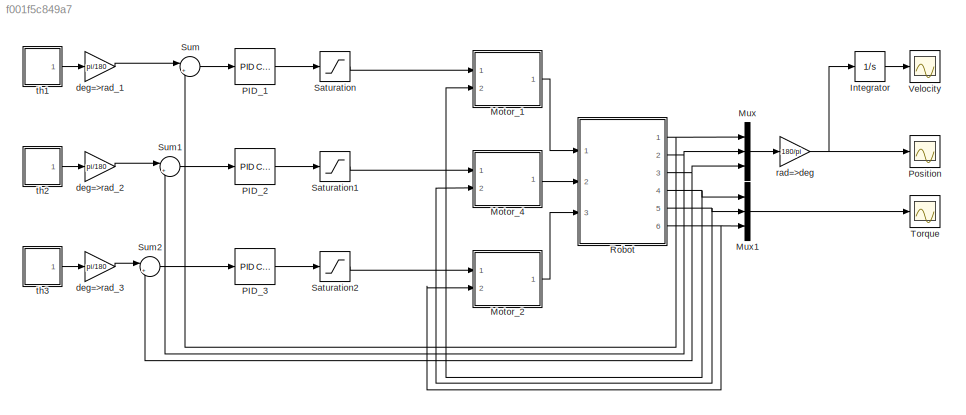
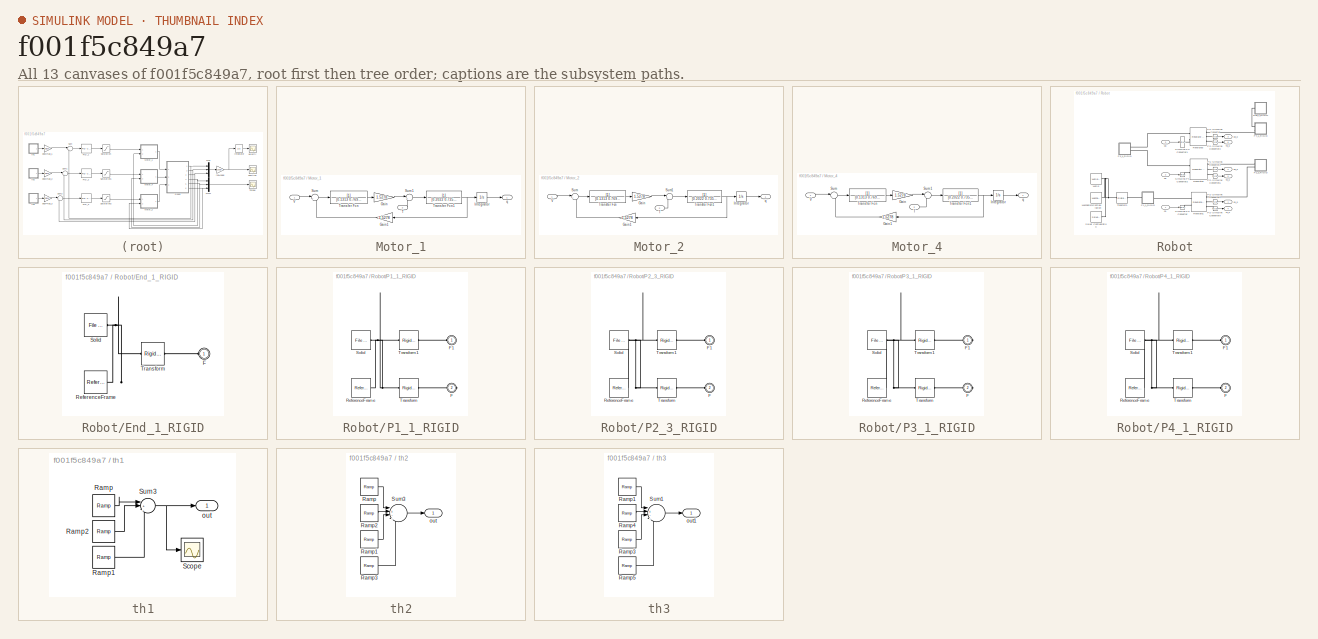
[diagram: thumbnail index - all 13 canvases of the model, root first then tree order]
MODEL slx_f001f5c849a7
KIND model
CONFIG AbsTol = auto
CONFIG EnableMultiTasking = off
CONFIG FixedStep = auto
CONFIG MaxStep = auto
CONFIG MinStep = auto
CONFIG RelTol = 1e-3
CONFIG SampleTimeConstraint = Unconstrained
CONFIG Solver = VariableStepAuto
CONFIG SolverName = VariableStepAuto
CONFIG StartTime = 0.0
CONFIG StopTime = 10
WORKSPACE source: external: MATLAB File  (data not in archive)
BLOCK [Integrator] Integrator
  Ports = [1, 1]
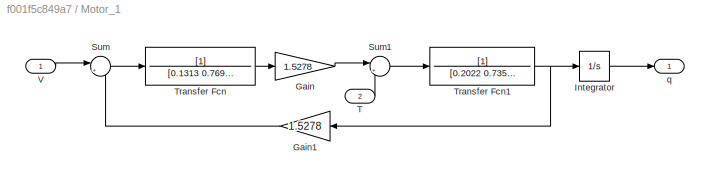
BLOCK [SubSystem] Motor_1
  Ports = [2, 1]
  RequestExecContextInheritance = off
BLOCK [Gain] Motor_1/Gain
  Gain = 1.5278
BLOCK [Gain] Motor_1/Gain1
  Gain = 1.5278
BLOCK [Integrator] Motor_1/Integrator
  Ports = [1, 1]
BLOCK [Sum] Motor_1/Sum
  Inputs = |+-
  Ports = [2, 1]
BLOCK [Sum] Motor_1/Sum1
  Inputs = |+-
  Ports = [2, 1]
BLOCK [Inport] Motor_1/T
  Port = 2
BLOCK [TransferFcn] Motor_1/Transfer Fcn
  Denominator = [0.1313 0.7692]
BLOCK [TransferFcn] Motor_1/Transfer Fcn1
  Denominator = [0.2022 0.7357]
BLOCK [Inport] Motor_1/V
BLOCK [Outport] Motor_1/q
BLOCK [SubSystem] Motor_2
  Ports = [2, 1]
  RequestExecContextInheritance = off
BLOCK [Gain] Motor_2/Gain
  Gain = 1.5278
BLOCK [Gain] Motor_2/Gain1
  Gain = 1.5278
BLOCK [Integrator] Motor_2/Integrator
  Ports = [1, 1]
BLOCK [Sum] Motor_2/Sum
  Inputs = |+-
  Ports = [2, 1]
BLOCK [Sum] Motor_2/Sum1
  Inputs = |+-
  Ports = [2, 1]
BLOCK [Inport] Motor_2/T
  Port = 2
BLOCK [TransferFcn] Motor_2/Transfer Fcn
  Denominator = [0.1313 0.7692]
BLOCK [TransferFcn] Motor_2/Transfer Fcn1
  Denominator = [0.2022 0.7357]
BLOCK [Inport] Motor_2/V
BLOCK [Outport] Motor_2/q
BLOCK [SubSystem] Motor_4
  Ports = [2, 1]
  RequestExecContextInheritance = off
BLOCK [Gain] Motor_4/Gain
  Gain = 1.5278
BLOCK [Gain] Motor_4/Gain1
  Gain = 1.5278
BLOCK [Integrator] Motor_4/Integrator
  Ports = [1, 1]
BLOCK [Sum] Motor_4/Sum
  Inputs = |+-
  Ports = [2, 1]
BLOCK [Sum] Motor_4/Sum1
  Inputs = |+-
  Ports = [2, 1]
BLOCK [Inport] Motor_4/T
  Port = 2
BLOCK [TransferFcn] Motor_4/Transfer Fcn
  Denominator = [0.1313 0.7692]
BLOCK [TransferFcn] Motor_4/Transfer Fcn1
  Denominator = [0.2022 0.7357]
BLOCK [Inport] Motor_4/V
BLOCK [Outport] Motor_4/q
BLOCK [Mux] Mux
  DisplayOption = bar
  Inputs = 3
  Ports = [3, 1]
BLOCK [Mux] Mux1
  DisplayOption = bar
  Inputs = 3
  Ports = [3, 1]
BLOCK [Reference] PID_1  REF=simulink/Continuous/PID Controller
  Ports = [1, 1]
  SourceBlock = simulink/Continuous/PID Controller
  SourceProductBaseCode = SL
  SourceType = PID 1dof
BLOCK [Reference] PID_2  REF=simulink/Continuous/PID Controller
  Ports = [1, 1]
  SourceBlock = simulink/Continuous/PID Controller
  SourceProductBaseCode = SL
  SourceType = PID 1dof
BLOCK [Reference] PID_3  REF=simulink/Continuous/PID Controller
  Ports = [1, 1]
  SourceBlock = simulink/Continuous/PID Controller
  SourceProductBaseCode = SL
  SourceType = PID 1dof
BLOCK [Scope] Position
  Floating = off
  NumInputPorts = 1
  Ports = [1]
  ScopeSpecificationString = Simulink.scopes.TimeScopeBlockCfg('CurrentConfiguration', extmgr.ConfigurationSet(extmgr.Configuration('Core','General UI',true),extmgr.Configuration('Core','Source UI',true),extmgr.Configuration('Sources','WiredSimulink',true),extmgr.Configuration('Visuals','Time Domain',true,'SerializedDisplays',{struct('MinYLimReal','-11.67409','MaxYLimReal','68.47838','YLabelReal','','MinYLimMag','0.00000','Ma...<+1749ch>
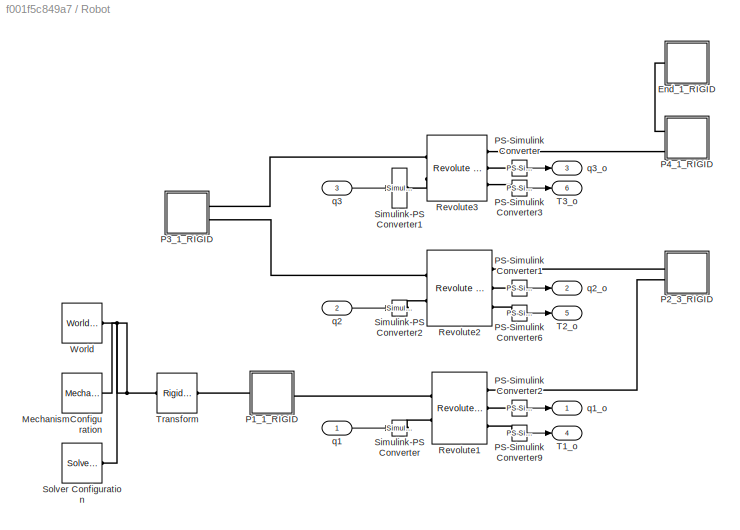
BLOCK [SubSystem] Robot
  Ports = [3, 6]
  RequestExecContextInheritance = off
BLOCK [SubSystem] Robot/End_1_RIGID
  Ports = [0, 0, 0, 0, 0, 1]
  RequestExecContextInheritance = off
BLOCK [PMIOPort] Robot/End_1_RIGID/F
  Side = Left
BLOCK [Reference] Robot/End_1_RIGID/ReferenceFrame  REF=sm_lib/Frames and
Transforms/Reference
Frame
  Ports = [0, 0, 0, 0, 0, 0, 1]
  SourceBlock = sm_lib/Frames and\nTransforms/Reference\nFrame
  SourceProductBaseCode = MS
  SourceType = Reference\nFrame
BLOCK [Reference] Robot/End_1_RIGID/Solid  REF=sm_lib/Body Elements/File Solid
  Ports = [0, 0, 0, 0, 0, 0, 1]
  SourceBlock = sm_lib/Body Elements/File Solid
  SourceProductBaseCode = MS
  SourceType = File Solid
BLOCK [Reference] Robot/End_1_RIGID/Transform  REF=sm_lib/Frames and
Transforms/Rigid
Transform
  Ports = [0, 0, 0, 0, 0, 1, 1]
  SourceBlock = sm_lib/Frames and\nTransforms/Rigid\nTransform
  SourceProductBaseCode = MS
  SourceType = Rigid\nTransform
BLOCK [Reference] Robot/MechanismConfiguration  REF=sm_lib/Utilities/Mechanism
Configuration
  Ports = [0, 0, 0, 0, 0, 0, 1]
  SourceBlock = sm_lib/Utilities/Mechanism\nConfiguration
  SourceProductBaseCode = MS
  SourceType = Mechanism\nConfiguration
BLOCK [SubSystem] Robot/P1_1_RIGID
  Ports = [0, 0, 0, 0, 0, 1, 1]
  RequestExecContextInheritance = off
BLOCK [PMIOPort] Robot/P1_1_RIGID/F
  Port = 2
  Side = Right
BLOCK [PMIOPort] Robot/P1_1_RIGID/F1
  Side = Left
BLOCK [Reference] Robot/P1_1_RIGID/ReferenceFrame  REF=sm_lib/Frames and
Transforms/Reference
Frame
  Ports = [0, 0, 0, 0, 0, 0, 1]
  SourceBlock = sm_lib/Frames and\nTransforms/Reference\nFrame
  SourceProductBaseCode = MS
  SourceType = Reference\nFrame
BLOCK [Reference] Robot/P1_1_RIGID/Solid  REF=sm_lib/Body Elements/File Solid
  Ports = [0, 0, 0, 0, 0, 0, 1]
  SourceBlock = sm_lib/Body Elements/File Solid
  SourceProductBaseCode = MS
  SourceType = File Solid
BLOCK [Reference] Robot/P1_1_RIGID/Transform  REF=sm_lib/Frames and
Transforms/Rigid
Transform
  Ports = [0, 0, 0, 0, 0, 1, 1]
  SourceBlock = sm_lib/Frames and\nTransforms/Rigid\nTransform
  SourceProductBaseCode = MS
  SourceType = Rigid\nTransform
BLOCK [Reference] Robot/P1_1_RIGID/Transform1  REF=sm_lib/Frames and
Transforms/Rigid
Transform
  Ports = [0, 0, 0, 0, 0, 1, 1]
  SourceBlock = sm_lib/Frames and\nTransforms/Rigid\nTransform
  SourceProductBaseCode = MS
  SourceType = Rigid\nTransform
BLOCK [SubSystem] Robot/P2_3_RIGID
  Ports = [0, 0, 0, 0, 0, 2]
  RequestExecContextInheritance = off
BLOCK [PMIOPort] Robot/P2_3_RIGID/F
  Port = 2
  Side = Left
BLOCK [PMIOPort] Robot/P2_3_RIGID/F1
  Side = Left
BLOCK [Reference] Robot/P2_3_RIGID/ReferenceFrame  REF=sm_lib/Frames and
Transforms/Reference
Frame
  Ports = [0, 0, 0, 0, 0, 0, 1]
  SourceBlock = sm_lib/Frames and\nTransforms/Reference\nFrame
  SourceProductBaseCode = MS
  SourceType = Reference\nFrame
BLOCK [Reference] Robot/P2_3_RIGID/Solid  REF=sm_lib/Body Elements/File Solid
  Ports = [0, 0, 0, 0, 0, 0, 1]
  SourceBlock = sm_lib/Body Elements/File Solid
  SourceProductBaseCode = MS
  SourceType = File Solid
BLOCK [Reference] Robot/P2_3_RIGID/Transform  REF=sm_lib/Frames and
Transforms/Rigid
Transform
  Ports = [0, 0, 0, 0, 0, 1, 1]
  SourceBlock = sm_lib/Frames and\nTransforms/Rigid\nTransform
  SourceProductBaseCode = MS
  SourceType = Rigid\nTransform
BLOCK [Reference] Robot/P2_3_RIGID/Transform1  REF=sm_lib/Frames and
Transforms/Rigid
Transform
  Ports = [0, 0, 0, 0, 0, 1, 1]
  SourceBlock = sm_lib/Frames and\nTransforms/Rigid\nTransform
  SourceProductBaseCode = MS
  SourceType = Rigid\nTransform
BLOCK [SubSystem] Robot/P3_1_RIGID
  Ports = [0, 0, 0, 0, 0, 0, 2]
  RequestExecContextInheritance = off
BLOCK [PMIOPort] Robot/P3_1_RIGID/F
  Port = 2
  Side = Right
BLOCK [PMIOPort] Robot/P3_1_RIGID/F1
  Side = Right
BLOCK [Reference] Robot/P3_1_RIGID/ReferenceFrame  REF=sm_lib/Frames and
Transforms/Reference
Frame
  Ports = [0, 0, 0, 0, 0, 0, 1]
  SourceBlock = sm_lib/Frames and\nTransforms/Reference\nFrame
  SourceProductBaseCode = MS
  SourceType = Reference\nFrame
BLOCK [Reference] Robot/P3_1_RIGID/Solid  REF=sm_lib/Body Elements/File Solid
  Ports = [0, 0, 0, 0, 0, 0, 1]
  SourceBlock = sm_lib/Body Elements/File Solid
  SourceProductBaseCode = MS
  SourceType = File Solid
BLOCK [Reference] Robot/P3_1_RIGID/Transform  REF=sm_lib/Frames and
Transforms/Rigid
Transform
  Ports = [0, 0, 0, 0, 0, 1, 1]
  SourceBlock = sm_lib/Frames and\nTransforms/Rigid\nTransform
  SourceProductBaseCode = MS
  SourceType = Rigid\nTransform
BLOCK [Reference] Robot/P3_1_RIGID/Transform1  REF=sm_lib/Frames and
Transforms/Rigid
Transform
  Ports = [0, 0, 0, 0, 0, 1, 1]
  SourceBlock = sm_lib/Frames and\nTransforms/Rigid\nTransform
  SourceProductBaseCode = MS
  SourceType = Rigid\nTransform
BLOCK [SubSystem] Robot/P4_1_RIGID
  Ports = [0, 0, 0, 0, 0, 2]
  RequestExecContextInheritance = off
BLOCK [PMIOPort] Robot/P4_1_RIGID/F
  Port = 2
  Side = Left
BLOCK [PMIOPort] Robot/P4_1_RIGID/F1
  Side = Left
BLOCK [Reference] Robot/P4_1_RIGID/ReferenceFrame  REF=sm_lib/Frames and
Transforms/Reference
Frame
  Ports = [0, 0, 0, 0, 0, 0, 1]
  SourceBlock = sm_lib/Frames and\nTransforms/Reference\nFrame
  SourceProductBaseCode = MS
  SourceType = Reference\nFrame
BLOCK [Reference] Robot/P4_1_RIGID/Solid  REF=sm_lib/Body Elements/File Solid
  Ports = [0, 0, 0, 0, 0, 0, 1]
  SourceBlock = sm_lib/Body Elements/File Solid
  SourceProductBaseCode = MS
  SourceType = File Solid
BLOCK [Reference] Robot/P4_1_RIGID/Transform  REF=sm_lib/Frames and
Transforms/Rigid
Transform
  Ports = [0, 0, 0, 0, 0, 1, 1]
  SourceBlock = sm_lib/Frames and\nTransforms/Rigid\nTransform
  SourceProductBaseCode = MS
  SourceType = Rigid\nTransform
BLOCK [Reference] Robot/P4_1_RIGID/Transform1  REF=sm_lib/Frames and
Transforms/Rigid
Transform
  Ports = [0, 0, 0, 0, 0, 1, 1]
  SourceBlock = sm_lib/Frames and\nTransforms/Rigid\nTransform
  SourceProductBaseCode = MS
  SourceType = Rigid\nTransform
BLOCK [Reference] Robot/PS-Simulink Converter  REF=nesl_utility/PS-Simulink
Converter
  Ports = [0, 1, 0, 0, 0, 1]
  SourceBlock = nesl_utility/PS-Simulink\nConverter
  SourceProductBaseCode = SS
  SourceType = PS-Simulink\nConverter
BLOCK [Reference] Robot/PS-Simulink Converter1  REF=nesl_utility/PS-Simulink
Converter
  Ports = [0, 1, 0, 0, 0, 1]
  SourceBlock = nesl_utility/PS-Simulink\nConverter
  SourceProductBaseCode = SS
  SourceType = PS-Simulink\nConverter
BLOCK [Reference] Robot/PS-Simulink Converter2  REF=nesl_utility/PS-Simulink
Converter
  Ports = [0, 1, 0, 0, 0, 1]
  SourceBlock = nesl_utility/PS-Simulink\nConverter
  SourceProductBaseCode = SS
  SourceType = PS-Simulink\nConverter
BLOCK [Reference] Robot/PS-Simulink Converter3  REF=nesl_utility/PS-Simulink
Converter
  Ports = [0, 1, 0, 0, 0, 1]
  SourceBlock = nesl_utility/PS-Simulink\nConverter
  SourceProductBaseCode = SS
  SourceType = PS-Simulink\nConverter
BLOCK [Reference] Robot/PS-Simulink Converter6  REF=nesl_utility/PS-Simulink
Converter
  Ports = [0, 1, 0, 0, 0, 1]
  SourceBlock = nesl_utility/PS-Simulink\nConverter
  SourceProductBaseCode = SS
  SourceType = PS-Simulink\nConverter
BLOCK [Reference] Robot/PS-Simulink Converter9  REF=nesl_utility/PS-Simulink
Converter
  Ports = [0, 1, 0, 0, 0, 1]
  SourceBlock = nesl_utility/PS-Simulink\nConverter
  SourceProductBaseCode = SS
  SourceType = PS-Simulink\nConverter
BLOCK [Reference] Robot/Revolute1  REF=sm_lib/Joints/Revolute Joint
  Ports = [0, 0, 0, 0, 0, 2, 3]
  SourceBlock = sm_lib/Joints/Revolute Joint
  SourceProductBaseCode = MS
  SourceType = Revolute Joint
BLOCK [Reference] Robot/Revolute2  REF=sm_lib/Joints/Revolute Joint
  Ports = [0, 0, 0, 0, 0, 2, 3]
  SourceBlock = sm_lib/Joints/Revolute Joint
  SourceProductBaseCode = MS
  SourceType = Revolute Joint
BLOCK [Reference] Robot/Revolute3  REF=sm_lib/Joints/Revolute Joint
  Ports = [0, 0, 0, 0, 0, 2, 3]
  SourceBlock = sm_lib/Joints/Revolute Joint
  SourceProductBaseCode = MS
  SourceType = Revolute Joint
BLOCK [Reference] Robot/Simulink-PS Converter  REF=nesl_utility/Simulink-PS
Converter
  Ports = [1, 0, 0, 0, 0, 0, 1]
  SourceBlock = nesl_utility/Simulink-PS\nConverter
  SourceProductBaseCode = SS
  SourceType = Simulink-PS\nConverter
BLOCK [Reference] Robot/Simulink-PS Converter1  REF=nesl_utility/Simulink-PS
Converter
  Ports = [1, 0, 0, 0, 0, 0, 1]
  SourceBlock = nesl_utility/Simulink-PS\nConverter
  SourceProductBaseCode = SS
  SourceType = Simulink-PS\nConverter
BLOCK [Reference] Robot/Simulink-PS Converter2  REF=nesl_utility/Simulink-PS
Converter
  Ports = [1, 0, 0, 0, 0, 0, 1]
  SourceBlock = nesl_utility/Simulink-PS\nConverter
  SourceProductBaseCode = SS
  SourceType = Simulink-PS\nConverter
BLOCK [Reference] Robot/Solver Configuration  REF=nesl_utility/Solver
Configuration
  Ports = [0, 0, 0, 0, 0, 0, 1]
  SourceBlock = nesl_utility/Solver\nConfiguration
  SourceProductBaseCode = SS
  SourceType = Solver\nConfiguration
BLOCK [Outport] Robot/T1_o
  Port = 4
BLOCK [Outport] Robot/T2_o
  Port = 5
BLOCK [Outport] Robot/T3_o
  Port = 6
BLOCK [Reference] Robot/Transform  REF=sm_lib/Frames and
Transforms/Rigid
Transform
  Ports = [0, 0, 0, 0, 0, 1, 1]
  SourceBlock = sm_lib/Frames and\nTransforms/Rigid\nTransform
  SourceProductBaseCode = MS
  SourceType = Rigid\nTransform
BLOCK [Reference] Robot/World  REF=sm_lib/Frames and
Transforms/World Frame
  Ports = [0, 0, 0, 0, 0, 0, 1]
  SourceBlock = sm_lib/Frames and\nTransforms/World Frame
  SourceProductBaseCode = MS
  SourceType = World Frame
BLOCK [Inport] Robot/q1
BLOCK [Outport] Robot/q1_o
BLOCK [Inport] Robot/q2
  Port = 2
BLOCK [Outport] Robot/q2_o
  Port = 2
BLOCK [Inport] Robot/q3
  Port = 3
BLOCK [Outport] Robot/q3_o
  Port = 3
BLOCK [Saturate] Saturation
  LowerLimit = -12
  UpperLimit = 12
BLOCK [Saturate] Saturation1
  LowerLimit = -12
  UpperLimit = 12
BLOCK [Saturate] Saturation2
  LowerLimit = -12
  UpperLimit = 12
BLOCK [Sum] Sum
  Inputs = |+-
  NameLocation = top
  Ports = [2, 1]
BLOCK [Sum] Sum1
  Inputs = |+-
  Ports = [2, 1]
BLOCK [Sum] Sum2
  Inputs = |+-
  Ports = [2, 1]
BLOCK [Scope] Torque
  Floating = off
  NumInputPorts = 1
  Ports = [1]
  ScopeSpecificationString = Simulink.scopes.TimeScopeBlockCfg('CurrentConfiguration', extmgr.ConfigurationSet(extmgr.Configuration('Core','General UI',true),extmgr.Configuration('Core','Source UI',true),extmgr.Configuration('Sources','WiredSimulink',true,'DataLoggingVariableName','ScopeData1'),extmgr.Configuration('Visuals','Time Domain',true,'SerializedDisplays',{struct('MinYLimReal','-0.01296','MaxYLimReal','0.0059','YLabe...<+1530ch>
BLOCK [Scope] Velocity
  Floating = off
  NumInputPorts = 1
  Ports = [1]
  ScopeSpecificationString = Simulink.scopes.TimeScopeBlockCfg('CurrentConfiguration', extmgr.ConfigurationSet(extmgr.Configuration('Core','General UI',true),extmgr.Configuration('Core','Source UI',true),extmgr.Configuration('Sources','WiredSimulink',true,'DataLoggingVariableName','ScopeData2'),extmgr.Configuration('Visuals','Time Domain',true,'SerializedDisplays',{struct('MinYLimReal','-49.20456','MaxYLimReal','442.84103','Y...<+1557ch>
BLOCK [Gain] deg=>rad_1
  Gain = pi/180
BLOCK [Gain] deg=>rad_2
  Gain = pi/180
BLOCK [Gain] deg=>rad_3
  Gain = pi/180
BLOCK [Gain] rad=>deg
  Gain = 180/pi
BLOCK [SubSystem] th1
  Ports = [0, 1]
  RequestExecContextInheritance = off
BLOCK [Reference] th1/Ramp  REF=simulink/Sources/Ramp
  Ports = [0, 1]
  SourceBlock = simulink/Sources/Ramp
  SourceProductBaseCode = SL
  SourceType = Ramp
BLOCK [Reference] th1/Ramp1  REF=simulink/Sources/Ramp
  Ports = [0, 1]
  SourceBlock = simulink/Sources/Ramp
  SourceProductBaseCode = SL
  SourceType = Ramp
BLOCK [Reference] th1/Ramp2  REF=simulink/Sources/Ramp
  Ports = [0, 1]
  SourceBlock = simulink/Sources/Ramp
  SourceProductBaseCode = SL
  SourceType = Ramp
BLOCK [Scope] th1/Scope
  Floating = off
  NumInputPorts = 1
  Ports = [1]
  ScopeSpecificationString = Simulink.scopes.TimeScopeBlockCfg('CurrentConfiguration', extmgr.ConfigurationSet(extmgr.Configuration('Core','General UI',true),extmgr.Configuration('Core','Source UI',true),extmgr.Configuration('Sources','WiredSimulink',true,'DataLoggingVariableName','ScopeData2'),extmgr.Configuration('Visuals','Time Domain',true,'SerializedDisplays',{struct('MinYLimReal','-7.5','MaxYLimReal','67.5','YLabelReal'...<+1372ch>
BLOCK [Sum] th1/Sum3
  Inputs = |+--
  Ports = [3, 1]
BLOCK [Outport] th1/out
BLOCK [SubSystem] th2
  Ports = [0, 1]
  RequestExecContextInheritance = off
BLOCK [Reference] th2/Ramp  REF=simulink/Sources/Ramp
  Ports = [0, 1]
  SourceBlock = simulink/Sources/Ramp
  SourceProductBaseCode = SL
  SourceType = Ramp
BLOCK [Reference] th2/Ramp1  REF=simulink/Sources/Ramp
  Ports = [0, 1]
  SourceBlock = simulink/Sources/Ramp
  SourceProductBaseCode = SL
  SourceType = Ramp
BLOCK [Reference] th2/Ramp2  REF=simulink/Sources/Ramp
  Ports = [0, 1]
  SourceBlock = simulink/Sources/Ramp
  SourceProductBaseCode = SL
  SourceType = Ramp
BLOCK [Reference] th2/Ramp3  REF=simulink/Sources/Ramp
  Ports = [0, 1]
  SourceBlock = simulink/Sources/Ramp
  SourceProductBaseCode = SL
  SourceType = Ramp
BLOCK [Sum] th2/Sum3
  Inputs = |+--+
  Ports = [4, 1]
BLOCK [Outport] th2/out
BLOCK [SubSystem] th3
  Ports = [0, 1]
  RequestExecContextInheritance = off
BLOCK [Reference] th3/Ramp1  REF=simulink/Sources/Ramp
  Ports = [0, 1]
  SourceBlock = simulink/Sources/Ramp
  SourceProductBaseCode = SL
  SourceType = Ramp
BLOCK [Reference] th3/Ramp3  REF=simulink/Sources/Ramp
  Ports = [0, 1]
  SourceBlock = simulink/Sources/Ramp
  SourceProductBaseCode = SL
  SourceType = Ramp
BLOCK [Reference] th3/Ramp4  REF=simulink/Sources/Ramp
  Ports = [0, 1]
  SourceBlock = simulink/Sources/Ramp
  SourceProductBaseCode = SL
  SourceType = Ramp
BLOCK [Reference] th3/Ramp5  REF=simulink/Sources/Ramp
  Ports = [0, 1]
  SourceBlock = simulink/Sources/Ramp
  SourceProductBaseCode = SL
  SourceType = Ramp
BLOCK [Sum] th3/Sum1
  Inputs = |+--+
  Ports = [4, 1]
BLOCK [Outport] th3/out1
LINE Integrator:1 -> Velocity:1
LINE Motor_1/Gain1:1 -> Motor_1/Sum:2
LINE Motor_1/Gain:1 -> Motor_1/Sum1:1
LINE Motor_1/Integrator:1 -> Motor_1/q:1
LINE Motor_1/Sum1:1 -> Motor_1/Transfer Fcn1:1
LINE Motor_1/Sum:1 -> Motor_1/Transfer Fcn:1
LINE Motor_1/T:1 -> Motor_1/Sum1:2
NET Motor_1/Transfer Fcn1:1 -> Motor_1/Gain1:1, Motor_1/Integrator:1
LINE Motor_1/Transfer Fcn:1 -> Motor_1/Gain:1
LINE Motor_1/V:1 -> Motor_1/Sum:1
LINE Motor_1:1 -> Robot:1
LINE Motor_2/Gain1:1 -> Motor_2/Sum:2
LINE Motor_2/Gain:1 -> Motor_2/Sum1:1
LINE Motor_2/Integrator:1 -> Motor_2/q:1
LINE Motor_2/Sum1:1 -> Motor_2/Transfer Fcn1:1
LINE Motor_2/Sum:1 -> Motor_2/Transfer Fcn:1
LINE Motor_2/T:1 -> Motor_2/Sum1:2
NET Motor_2/Transfer Fcn1:1 -> Motor_2/Gain1:1, Motor_2/Integrator:1
LINE Motor_2/Transfer Fcn:1 -> Motor_2/Gain:1
LINE Motor_2/V:1 -> Motor_2/Sum:1
LINE Motor_2:1 -> Robot:3
LINE Motor_4/Gain1:1 -> Motor_4/Sum:2
LINE Motor_4/Gain:1 -> Motor_4/Sum1:1
LINE Motor_4/Integrator:1 -> Motor_4/q:1
LINE Motor_4/Sum1:1 -> Motor_4/Transfer Fcn1:1
LINE Motor_4/Sum:1 -> Motor_4/Transfer Fcn:1
LINE Motor_4/T:1 -> Motor_4/Sum1:2
NET Motor_4/Transfer Fcn1:1 -> Motor_4/Gain1:1, Motor_4/Integrator:1
LINE Motor_4/Transfer Fcn:1 -> Motor_4/Gain:1
LINE Motor_4/V:1 -> Motor_4/Sum:1
LINE Motor_4:1 -> Robot:2
LINE Mux1:1 -> Torque:1
LINE Mux:1 -> rad=>deg:1
LINE PID_1:1 -> Saturation:1
LINE PID_2:1 -> Saturation1:1
LINE PID_3:1 -> Saturation2:1
LINE Robot/PS-Simulink Converter1:1 -> Robot/q2_o:1
LINE Robot/PS-Simulink Converter2:1 -> Robot/q1_o:1
LINE Robot/PS-Simulink Converter3:1 -> Robot/T3_o:1
LINE Robot/PS-Simulink Converter6:1 -> Robot/T2_o:1
LINE Robot/PS-Simulink Converter9:1 -> Robot/T1_o:1
LINE Robot/PS-Simulink Converter:1 -> Robot/q3_o:1
LINE Robot/q1:1 -> Robot/Simulink-PS Converter:1
LINE Robot/q2:1 -> Robot/Simulink-PS Converter2:1
LINE Robot/q3:1 -> Robot/Simulink-PS Converter1:1
NET Robot:1 -> Mux:1, Sum:2
NET Robot:2 -> Mux:2, Sum1:2
NET Robot:3 -> Mux:3, Sum2:2
NET Robot:4 -> Motor_1:2, Mux1:1
NET Robot:5 -> Motor_4:2, Mux1:2
NET Robot:6 -> Motor_2:2, Mux1:3
LINE Saturation1:1 -> Motor_4:1
LINE Saturation2:1 -> Motor_2:1
LINE Saturation:1 -> Motor_1:1
LINE Sum1:1 -> PID_2:1
LINE Sum2:1 -> PID_3:1
LINE Sum:1 -> PID_1:1
LINE deg=>rad_1:1 -> Sum:1
LINE deg=>rad_2:1 -> Sum1:1
LINE deg=>rad_3:1 -> Sum2:1
NET rad=>deg:1 -> Integrator:1, Position:1
LINE th1/Ramp1:1 -> th1/Sum3:3
LINE th1/Ramp2:1 -> th1/Sum3:2
LINE th1/Ramp:1 -> th1/Sum3:1
NET th1/Sum3:1 -> th1/Scope:1, th1/out:1
LINE th1:1 -> deg=>rad_1:1
LINE th2/Ramp1:1 -> th2/Sum3:3
LINE th2/Ramp2:1 -> th2/Sum3:2
LINE th2/Ramp3:1 -> th2/Sum3:4
LINE th2/Ramp:1 -> th2/Sum3:1
LINE th2/Sum3:1 -> th2/out:1
LINE th2:1 -> deg=>rad_2:1
LINE th3/Ramp1:1 -> th3/Sum1:1
LINE th3/Ramp3:1 -> th3/Sum1:3
LINE th3/Ramp4:1 -> th3/Sum1:2
LINE th3/Ramp5:1 -> th3/Sum1:4
LINE th3/Sum1:1 -> th3/out1:1
LINE th3:1 -> deg=>rad_3:1
PLINE Robot/End_1_RIGID/F:RConn1 -- Robot/End_1_RIGID/Transform:RConn1
PNET net1: Robot/End_1_RIGID/ReferenceFrame:RConn1 -- Robot/End_1_RIGID/Solid:RConn1 -- Robot/End_1_RIGID/Transform:LConn1
PLINE Robot/End_1_RIGID:LConn1 -- Robot/P4_1_RIGID:LConn1
PNET net2: Robot/MechanismConfiguration:RConn1 -- Robot/Solver Configuration:RConn1 -- Robot/Transform:LConn1 -- Robot/World:RConn1
PLINE Robot/P1_1_RIGID/F1:RConn1 -- Robot/P1_1_RIGID/Transform1:RConn1
PLINE Robot/P1_1_RIGID/F:RConn1 -- Robot/P1_1_RIGID/Transform:RConn1
PNET net3: Robot/P1_1_RIGID/ReferenceFrame:RConn1 -- Robot/P1_1_RIGID/Solid:RConn1 -- Robot/P1_1_RIGID/Transform1:LConn1 -- Robot/P1_1_RIGID/Transform:LConn1
PLINE Robot/P1_1_RIGID:LConn1 -- Robot/Transform:RConn1
PLINE Robot/P1_1_RIGID:RConn1 -- Robot/Revolute1:LConn1
PLINE Robot/P2_3_RIGID/F1:RConn1 -- Robot/P2_3_RIGID/Transform1:RConn1
PLINE Robot/P2_3_RIGID/F:RConn1 -- Robot/P2_3_RIGID/Transform:RConn1
PNET net4: Robot/P2_3_RIGID/ReferenceFrame:RConn1 -- Robot/P2_3_RIGID/Solid:RConn1 -- Robot/P2_3_RIGID/Transform1:LConn1 -- Robot/P2_3_RIGID/Transform:LConn1
PLINE Robot/P2_3_RIGID:LConn1 -- Robot/Revolute2:RConn1
PLINE Robot/P2_3_RIGID:LConn2 -- Robot/Revolute1:RConn1
PLINE Robot/P3_1_RIGID/F1:RConn1 -- Robot/P3_1_RIGID/Transform1:RConn1
PLINE Robot/P3_1_RIGID/F:RConn1 -- Robot/P3_1_RIGID/Transform:RConn1
PNET net5: Robot/P3_1_RIGID/ReferenceFrame:RConn1 -- Robot/P3_1_RIGID/Solid:RConn1 -- Robot/P3_1_RIGID/Transform1:LConn1 -- Robot/P3_1_RIGID/Transform:LConn1
PLINE Robot/P3_1_RIGID:RConn1 -- Robot/Revolute3:LConn1
PLINE Robot/P3_1_RIGID:RConn2 -- Robot/Revolute2:LConn1
PLINE Robot/P4_1_RIGID/F1:RConn1 -- Robot/P4_1_RIGID/Transform1:RConn1
PLINE Robot/P4_1_RIGID/F:RConn1 -- Robot/P4_1_RIGID/Transform:RConn1
PNET net6: Robot/P4_1_RIGID/ReferenceFrame:RConn1 -- Robot/P4_1_RIGID/Solid:RConn1 -- Robot/P4_1_RIGID/Transform1:LConn1 -- Robot/P4_1_RIGID/Transform:LConn1
PLINE Robot/P4_1_RIGID:LConn2 -- Robot/Revolute3:RConn1
PLINE Robot/PS-Simulink Converter1:LConn1 -- Robot/Revolute2:RConn2
PLINE Robot/PS-Simulink Converter2:LConn1 -- Robot/Revolute1:RConn2
PLINE Robot/PS-Simulink Converter3:LConn1 -- Robot/Revolute3:RConn3
PLINE Robot/PS-Simulink Converter6:LConn1 -- Robot/Revolute2:RConn3
PLINE Robot/PS-Simulink Converter9:LConn1 -- Robot/Revolute1:RConn3
PLINE Robot/PS-Simulink Converter:LConn1 -- Robot/Revolute3:RConn2
PLINE Robot/Revolute1:LConn2 -- Robot/Simulink-PS Converter:RConn1
PLINE Robot/Revolute2:LConn2 -- Robot/Simulink-PS Converter2:RConn1
PLINE Robot/Revolute3:LConn2 -- Robot/Simulink-PS Converter1:RConn1
note: NET lines group one-source signal fan-out (src -> all destinations, sorted); 1:1 wires keep LINE; PNET lines group multi-terminal physical nets as a canonical sorted terminal list (undirected conserving connections); 2-terminal nets keep the pairwise PLINE form
